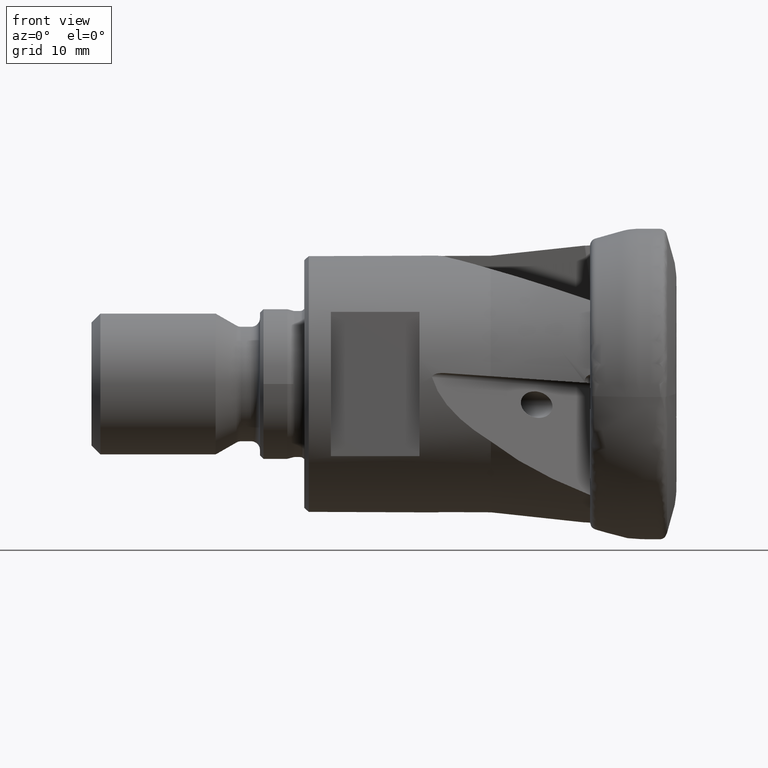
[diagram: clean part render]
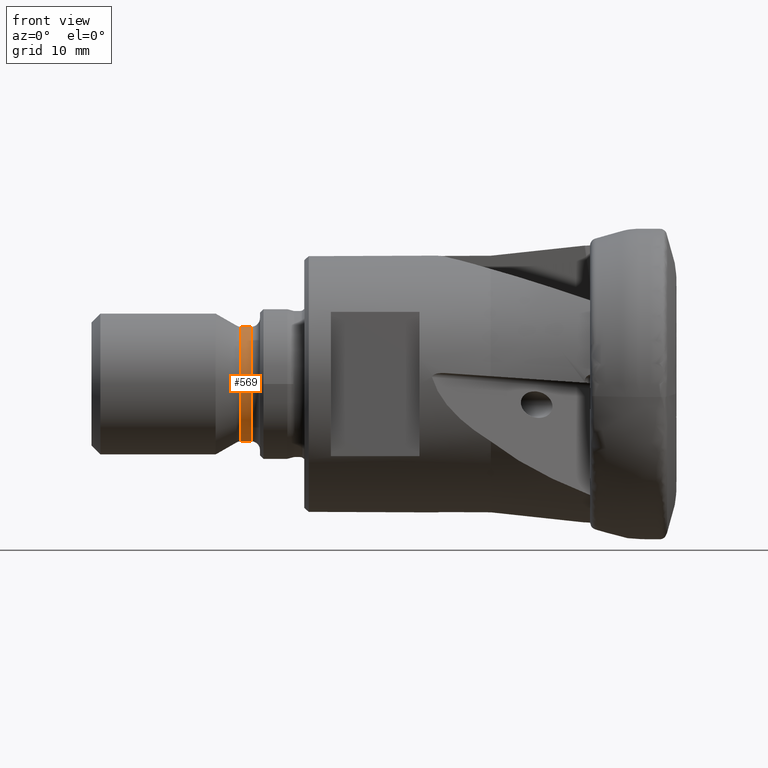
[diagram: same view with one face highlighted and labeled with its STEP entity id]
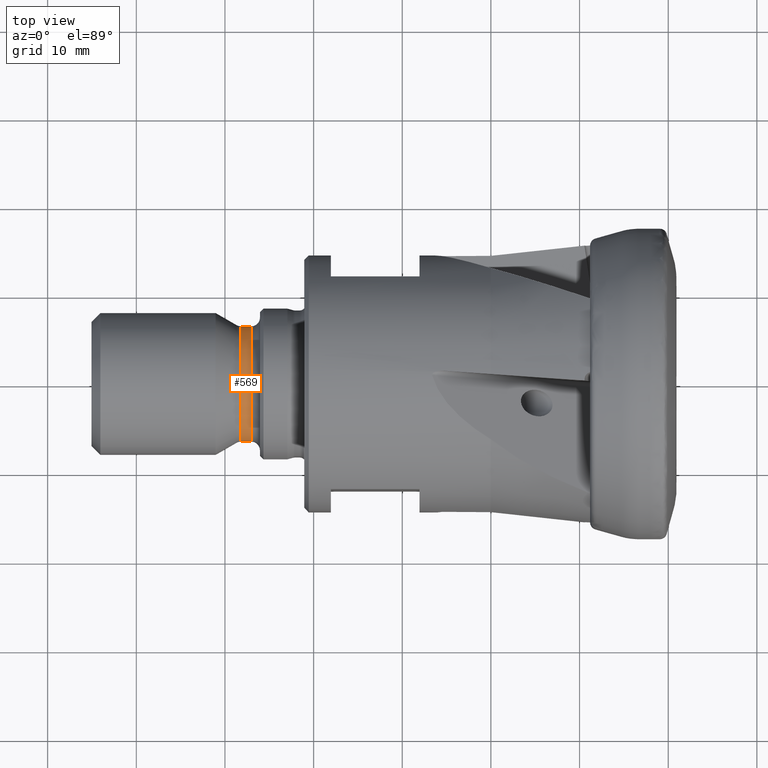
[diagram: same view with one face highlighted and labeled with its STEP entity id]
A machine part, front view. The second image highlights one B-rep face of the part: STEP entity #569.
A second angle (top view) of the same face is appended — the face is thin or edge-on in the first view.
In plain terms, the highlighted cylindrical surface (bore or boss wall) has radius 6.5 mm, axis along (1, 0, -0).
Its self-contained STEP definition (entity closure, byte-faithful):
#133 = EDGE_LOOP ( 'NONE', ( #5340 ) ) ;
#205 = CYLINDRICAL_SURFACE ( 'NONE', #1008, 6.499999999999999100 ) ;
#360 = FACE_OUTER_BOUND ( 'NONE', #133, .T. ) ;
#510 = CIRCLE ( 'NONE', #3864, 6.500000000000000000 ) ;
#569 = ADVANCED_FACE ( 'NONE', ( #360, #2559 ), #205, .T. ) ;
#740 = DIRECTION ( 'NONE',  ( 1.000000000000000000, 1.224646799147351500E-016, -0.0000000000000000000 ) ) ;
#1008 = AXIS2_PLACEMENT_3D ( 'NONE', #4896, #2893, #5192 ) ;
#1529 = DIRECTION ( 'NONE',  ( 1.000000000000000000, 1.224646799147351500E-016, -0.0000000000000000000 ) ) ;
#1718 = CARTESIAN_POINT ( 'NONE',  ( -47.05000000000000400, 6.499999999999993800, 0.0000000000000000000 ) ) ;
#1926 = ORIENTED_EDGE ( 'NONE', *, *, #4561, .F. ) ;
#1975 = EDGE_LOOP ( 'NONE', ( #1926 ) ) ;
#2559 = FACE_OUTER_BOUND ( 'NONE', #1975, .T. ) ;
#2759 = CARTESIAN_POINT ( 'NONE',  ( -48.18397459621557700, -5.900835025945269900E-015, 0.0000000000000000000 ) ) ;
#2893 = DIRECTION ( 'NONE',  ( 1.000000000000000000, 1.224646799147351500E-016, -0.0000000000000000000 ) ) ;
#2914 = VERTEX_POINT ( 'NONE', #1718 ) ;
#3093 = CIRCLE ( 'NONE', #4940, 6.499999999999999100 ) ;
#3864 = AXIS2_PLACEMENT_3D ( 'NONE', #4643, #1529, #4847 ) ;
#3957 = VERTEX_POINT ( 'NONE', #4800 ) ;
#4561 = EDGE_CURVE ( 'NONE', #2914, #2914, #510, .T. ) ;
#4643 = CARTESIAN_POINT ( 'NONE',  ( -47.05000000000000400, -5.761963189988289000E-015, 0.0000000000000000000 ) ) ;
#4788 = DIRECTION ( 'NONE',  ( 0.0000000000000000000, 1.000000000000000000, 0.0000000000000000000 ) ) ;
#4800 = CARTESIAN_POINT ( 'NONE',  ( -48.18397459621557700, 6.499999999999992900, 0.0000000000000000000 ) ) ;
#4847 = DIRECTION ( 'NONE',  ( 0.0000000000000000000, 1.000000000000000000, 0.0000000000000000000 ) ) ;
#4896 = CARTESIAN_POINT ( 'NONE',  ( 0.0000000000000000000, 0.0000000000000000000, 0.0000000000000000000 ) ) ;
#4940 = AXIS2_PLACEMENT_3D ( 'NONE', #2759, #740, #4788 ) ;
#5192 = DIRECTION ( 'NONE',  ( -1.224646799147351200E-016, 1.000000000000000000, 0.0000000000000000000 ) ) ;
#5340 = ORIENTED_EDGE ( 'NONE', *, *, #5389, .T. ) ;
#5389 = EDGE_CURVE ( 'NONE', #3957, #3957, #3093, .T. ) ;